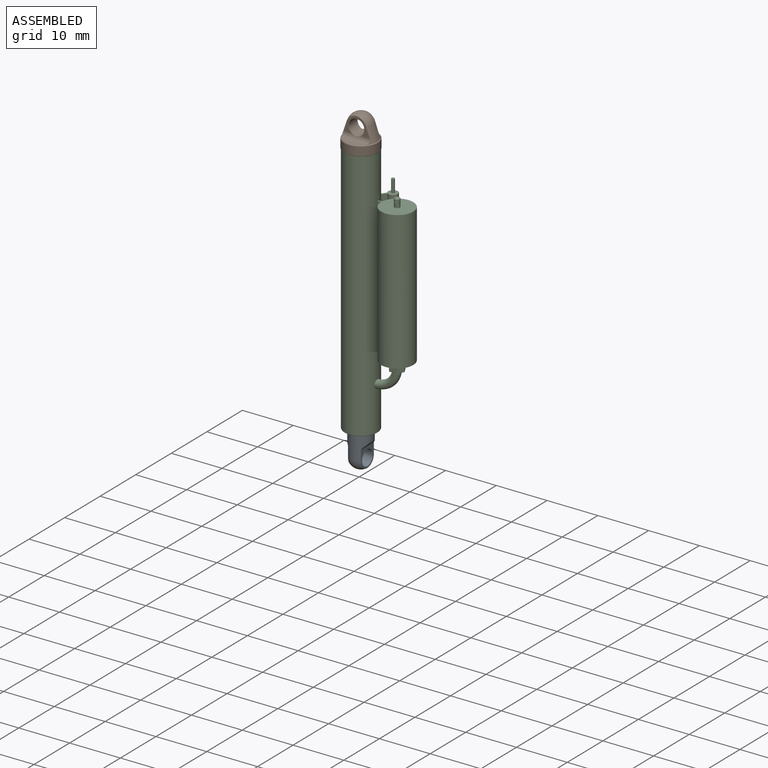
[diagram: assembled view]
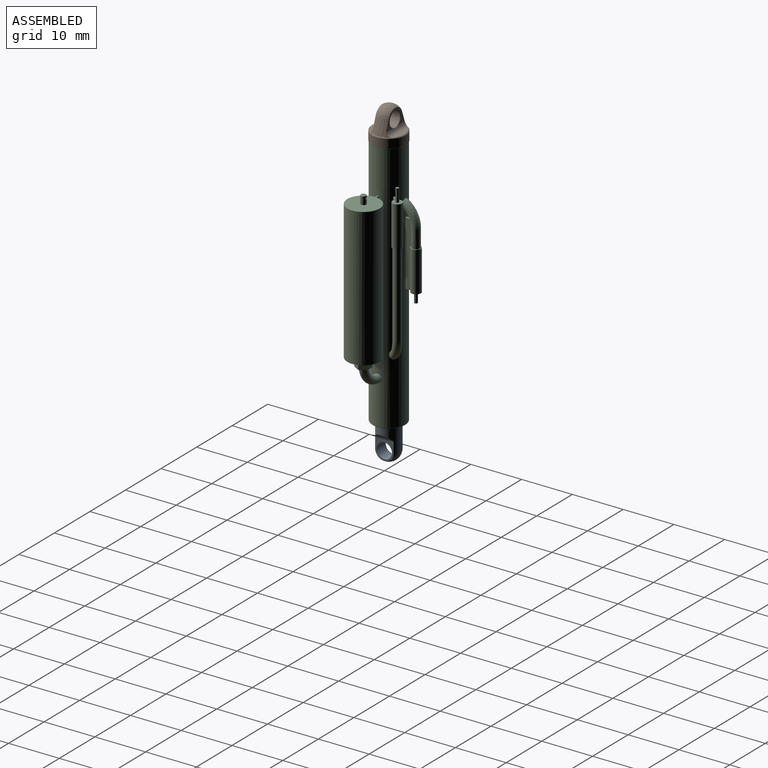
[diagram: assembled view, second angle]
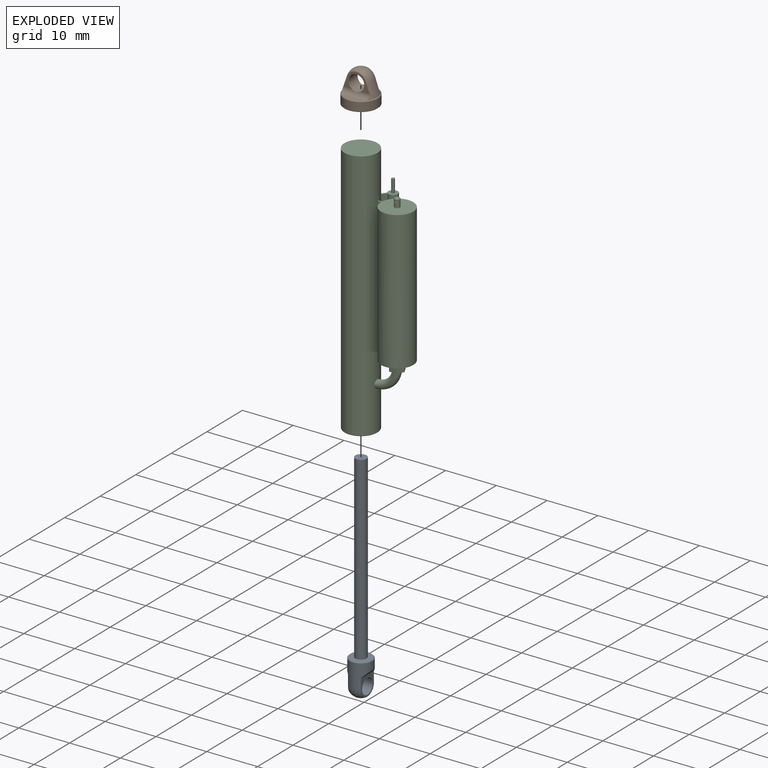
[diagram: exploded view]
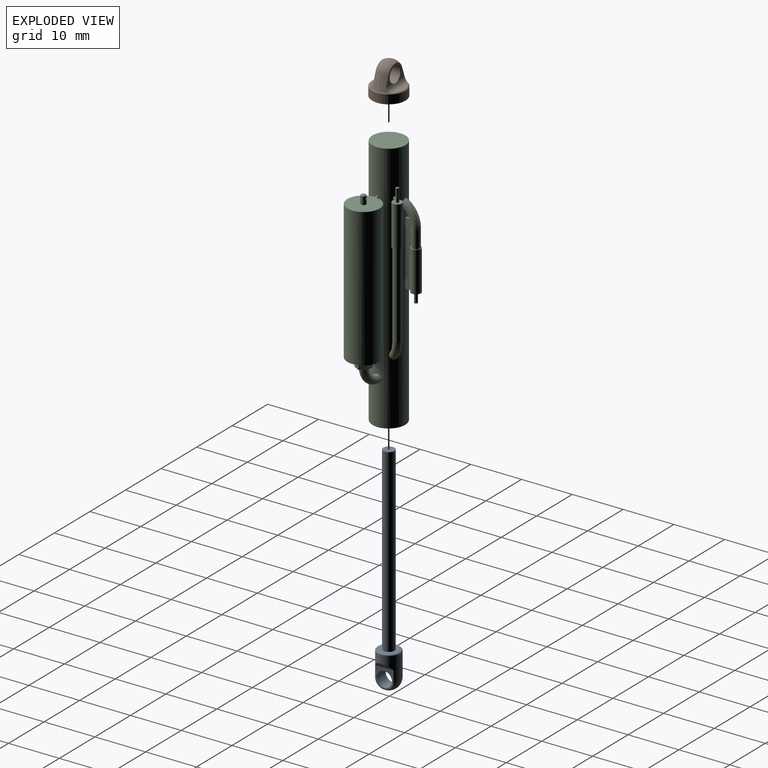
[diagram: exploded view, second angle]
ASSEMBLY  parts=3 mates=2
PART A: 13 faces, bbox 4.4x4.4x42.7 mm
  f0: plane 3.75x3.65mm, normal (0,1,0), area 5.1mm2, adj f2,f3,f6,f9
  f1: plane 3.75x3.65mm, normal (0,-1,0), area 5.1mm2, adj f2,f3,f7,f9
  f2: sphere r=2.22mm, area 17.7mm2, adj f0,f1,f3
  f3: cylinder r=2.22mm len=4.77mm, axis (0,0,-1), area 42.5mm2, adj f0,f1,f2,f5,f6,f7,f8,f12
  f4: plane 4.14x4.14mm, normal (0,0,1), area 9.6mm2, adj f10,f12
  f5: plane 3.36x0.77mm, normal (0,0.71,-0.71), area 2.5mm2, adj f3,f6
  f6: cylinder r=0.64mm len=3.65mm, axis (-1,0,0), area 1.8mm2, adj f0,f3,f5
  f7: cylinder r=0.64mm len=3.65mm, axis (-1,0,0), area 1.8mm2, adj f1,f3,f8
  f8: plane 3.36x0.77mm, normal (0,-0.71,-0.71), area 2.5mm2, adj f3,f7
  f9: cylinder r=1.51mm len=3.02mm, axis (0,-1,0), area 24.1mm2, adj f0,f1
  f10: cylinder r=1.11mm len=35.56mm, axis (0,0,-1), area 248.3mm2, adj f4,f11
  f11: plane 2.22x2.22mm, normal (0,0,1), area 3.9mm2, adj f10
  f12: cone r=2.22mm half-angle=45deg, axis (0,0,-1), area 2.9mm2, adj f3,f4
PART B: 18 faces, bbox 6.7x6.7x6.6 mm
  f0: plane 5.21x3.29mm, normal (0,-1,0), area 5mm2, adj f3,f4,f8,f10,f15
  f1: plane 5.21x3.29mm, normal (0,1,0), area 4.9mm2, adj f2,f3,f4,f8,f14
  f2: cylinder r=0.95mm len=5.16mm, axis (-1,0,0), area 6.8mm2, adj f1,f3,f8,f11,f13
  f3: cone r=3.17mm half-angle=17.3deg, axis (0,0,-1), area 8.5mm2, adj f0,f1,f2,f4,f7,f10
  f4: sphere r=2.38mm, area 15.1mm2, adj f0,f1,f3,f8
  f5: plane 6.49x6.49mm, normal (0,0,-1), area 33.1mm2, adj f17
  f6: cylinder r=3.32mm len=6.64mm, axis (0,0,1), area 36mm2, adj f7,f17
  f7: cone r=3.32mm half-angle=45deg, axis (0,0,-1), area 4.2mm2, adj f3,f6,f8,f9,f11
  f8: cone r=3.17mm half-angle=17.3deg, axis (0,0,-1), area 8.5mm2, adj f0,f1,f2,f4,f7,f10
  f9: plane 4.54x0.95mm, normal (0,0,1), area 3mm2, adj f7,f10
  f10: cylinder r=0.95mm len=5.16mm, axis (-1,0,0), area 6.9mm2, adj f0,f3,f8,f9,f16
  f11: plane 4.54x0.95mm, normal (0,0,1), area 3mm2, adj f2,f7
  f12: cylinder r=1.51mm len=3.02mm, axis (0,1,0), area 23.1mm2, adj f13,f14,f15,f16
  f13: bspline ~1.95x0.37mm, area 0.2mm2, adj f2,f12,f14
  f14: cone r=1.51mm half-angle=45deg, axis (0,1,0), area 0.7mm2, adj f1,f12,f13
  f15: cone r=1.56mm half-angle=45deg, axis (0,-1,0), area 0.5mm2, adj f0,f12,f16
  f16: bspline ~1.89x0.34mm, area 0.1mm2, adj f10,f12,f15
  f17: cone r=3.32mm half-angle=45deg, axis (0,0,1), area 2.2mm2, adj f5,f6
PART C: 48 faces, bbox 10.1x13.8x49.9 mm
  f0: plane 27.83x0.72mm, normal (1,0,0), area 19.4mm2, adj f1,f12,f13,f38,f40,f47
  f1: plane 0.32x0.01mm, normal (0,0.02,1), area 0mm2, adj f0,f2,f38,f39,f47
  f2: cylinder r=3.26mm len=49.7mm, axis (0,0,1), area 998.3mm2, adj f1,f5,f6,f7,f8,f23,f25,f30
  f3: cylinder r=0.53mm len=1.45mm, axis (0,0,-1), area 4.7mm2, adj f13,f15,f37
  f4: plane 6.21x6.21mm, normal (0,0,-1), area 30.2mm2, adj f6
  f5: plane 6.51x6.51mm, normal (0,0,1), area 33.3mm2, adj f2
  f6: torus R=3.1mm, axis (0,0,-1), area 4.8mm2, adj f2,f4
  f7: cylinder r=0.79mm len=1.59mm, axis (0,1,0), area 0.1mm2, adj f2,f10
  f8: cylinder r=0.79mm len=1.59mm, axis (0,1,0), area 0.1mm2, adj f2,f10
  f9: plane 1.59x0.79mm, normal (0,-0.1,0.99), area 1mm2, adj f10,f22
  f10: torus R=3.9mm, axis (1,0,0), area 28.4mm2, adj f7,f8,f9,f22
  f11: plane 6.35x6.35mm, normal (0,0,-1), area 26.1mm2, adj f12,f16,f17,f18,f19,f20,f21
  f12: cylinder r=3.17mm len=27.31mm, axis (0,0,1), area 536.2mm2, adj f0,f11,f13,f39,f40
  f13: plane 7.04x6.35mm, normal (0,0,1), area 31mm2, adj f0,f3,f12,f39,f47
  f14: plane 0.66x0.66mm, normal (0,0,1), area 0.3mm2, adj f15
  f15: torus R=0.33mm, axis (0,0,-1), area 0.9mm2, adj f3,f14
  f16: plane 1.73x1.27mm, normal (0.5,0.87,0), area 2.5mm2, adj f11,f17,f21,f22
  f17: plane 1.73x1.47mm, normal (1,0,0), area 2.5mm2, adj f11,f16,f18,f22
  f18: plane 1.73x1.27mm, normal (0.5,-0.87,0), area 2.5mm2, adj f11,f17,f19,f22
  f19: plane 1.73x1.27mm, normal (-0.5,-0.87,0), area 2.5mm2, adj f11,f18,f20,f22
  f20: plane 1.73x1.47mm, normal (-1,0,0), area 2.5mm2, adj f11,f19,f21,f22
  f21: plane 1.73x1.27mm, normal (-0.5,0.87,0), area 2.5mm2, adj f11,f16,f20,f22
  f22: plane 2.93x2.54mm, normal (0,0,-1), area 4.6mm2, adj f9,f10,f16,f17,f18,f19,f20,f21
  f23: torus R=4.17mm, axis (0.65,0.76,0), area 22.1mm2, adj f2,f28
  f24: cylinder r=0.95mm len=7.97mm, axis (0,0,1), area 45.2mm2, adj f25,f29,f41,f42
  f25: plane 2.65x2.43mm, normal (0,0,1), area 2.9mm2, adj f2,f24,f26,f41,f42
  f26: cylinder r=0.32mm len=2.54mm, axis (0,0,1), area 5.1mm2, adj f25,f27
  f27: plane 0.64x0.64mm, normal (0,0,1), area 0.3mm2, adj f26
  f28: cylinder r=0.79mm len=16.51mm, axis (0,0,1), area 80mm2, adj f23,f29,f41,f42,f43
  f29: plane 1.91x1.91mm, normal (0,0,-1), area 0.8mm2, adj f24,f28,f41,f42
  f30: torus R=4.46mm, axis (0,-1,0), area 22.2mm2, adj f2,f31,f44,f45,f46
  f31: cylinder r=0.79mm len=3.49mm, axis (0,0,-1), area 16.1mm2, adj f30,f36,f45,f46
  f32: cylinder r=0.95mm len=7.94mm, axis (0,0,1), area 44.4mm2, adj f33,f36,f45,f46
  f33: plane 3.07x1.91mm, normal (0,0,-1), area 3mm2, adj f2,f32,f34,f45,f46
  f34: cylinder r=0.32mm len=1.91mm, axis (0,0,-1), area 3.8mm2, adj f33,f35
  f35: plane 0.64x0.64mm, normal (0,0,-1), area 0.3mm2, adj f34
  f36: plane 1.91x1.91mm, normal (0,0,1), area 0.8mm2, adj f31,f32,f45,f46
  f37: cylinder r=0.14mm len=1.07mm, axis (-1,0,0), area 0.9mm2, adj f3
  f38: plane 27.83x0.25mm, normal (0,1,0), area 7mm2, adj f0,f1,f2,f40
  f39: plane 27.83x0.7mm, normal (-1,0,0), area 18.9mm2, adj f1,f2,f12,f13,f40,f47
  f40: plane 0.72x0.32mm, normal (0,-0.07,-1), area 0.2mm2, adj f0,f2,f12,f38,f39
  f41: plane 15.24x1.06mm, normal (-0.59,-0.81,0), area 18.7mm2, adj f2,f24,f25,f28,f29,f43
  f42: plane 15.24x1.09mm, normal (0.59,0.81,0), area 19.3mm2, adj f2,f24,f25,f28,f29,f43
  f43: plane 1.3x1.01mm, normal (0,0,-1), area 0.4mm2, adj f2,f28,f41,f42
  f44: plane 1.21x0.39mm, normal (0,0,1), area 0.4mm2, adj f2,f30,f45,f46
  f45: plane 12.7x1.3mm, normal (0,-1,0), area 15.2mm2, adj f2,f30,f31,f32,f33,f36,f44
  f46: plane 12.7x1.42mm, normal (0,1,0), area 16.5mm2, adj f2,f30,f31,f32,f33,f36,f44
  f47: plane 0.95x0.32mm, normal (0,-1,0), area 0.3mm2, adj f0,f1,f13,f39
PLACE A rot(axis=(0,0,1),90deg) t=(-0.37,-0.37,5.7)mm
PLACE B t=(-0.37,-0.37,0)mm
PLACE C rot(axis=(0,0,1),90deg) t=(-0.37,-0.37,0)mm
MATE fastened C.f2 <-> B.f3  axis (0,0,1) through (-0.37,-0.37,0)mm
MATE cylindrical A.f10 <-> C.f2  axis (0,0,-1) through (-0.37,-0.37,-32.09)mm
